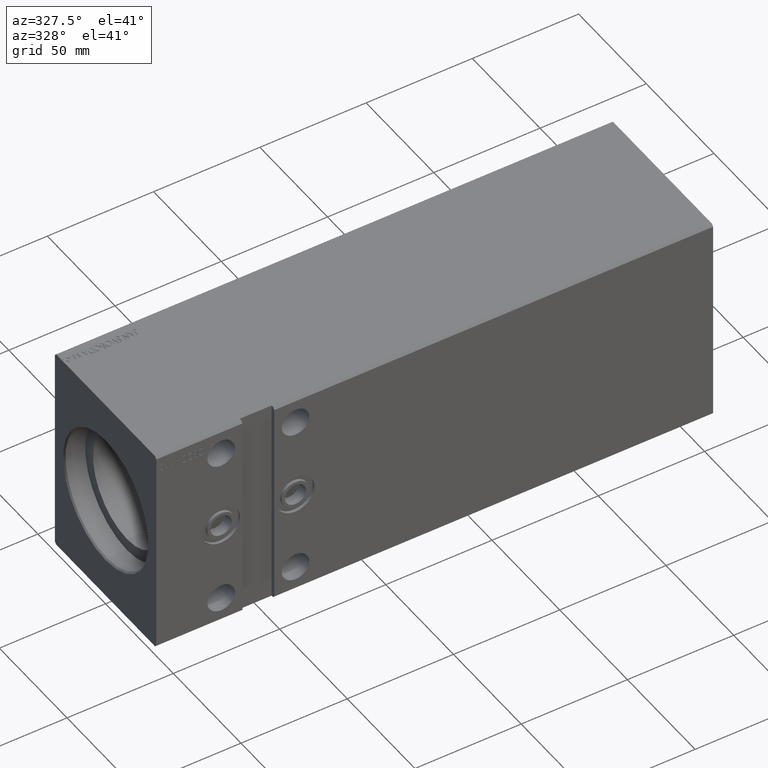
[diagram: clean part render]
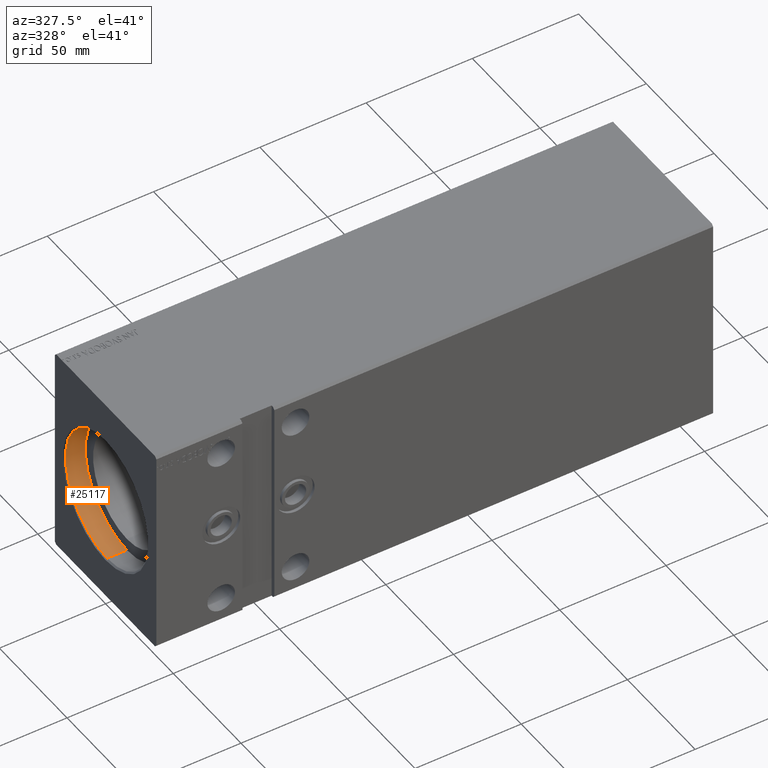
[diagram: same view with one face highlighted and labeled with its STEP entity id]
A machine part, auxiliary view. The second image highlights one B-rep face of the part: STEP entity #25117.
In plain terms, the highlighted cylindrical surface (partial cylindrical patch) has radius 30.75 mm, axis along (-1, -0, -0).
Its self-contained STEP definition (entity closure, byte-faithful):
#218 = VERTEX_POINT ( 'NONE', #27071 ) ;
#445 = DIRECTION ( 'NONE',  ( 0.000000000000000000, 0.000000000000000000, 1.000000000000000000 ) ) ;
#1341 = CARTESIAN_POINT ( 'NONE',  ( 0.6999999999999957367, 3.765788907378111328E-15, -30.75000000000000355 ) ) ;
#3138 = CYLINDRICAL_SURFACE ( 'NONE', #20716, 30.75000000000000355 ) ;
#3277 = VECTOR ( 'NONE', #14065, 1000.000000000000000 ) ;
#6073 = DIRECTION ( 'NONE',  ( 0.000000000000000000, 0.000000000000000000, 1.000000000000000000 ) ) ;
#6804 = CARTESIAN_POINT ( 'NONE',  ( 10.00000000000000000, 3.765788907378111328E-15, -30.75000000000000355 ) ) ;
#9210 = ORIENTED_EDGE ( 'NONE', *, *, #10009, .T. ) ;
#9942 = CARTESIAN_POINT ( 'NONE',  ( 0.6999999999999957367, 0.000000000000000000, 0.000000000000000000 ) ) ;
#10009 = EDGE_CURVE ( 'NONE', #31422, #16236, #40732, .T. ) ;
#10543 = CARTESIAN_POINT ( 'NONE',  ( 10.00000000000000000, 0.000000000000000000, 30.75000000000000355 ) ) ;
#11177 = VERTEX_POINT ( 'NONE', #28236 ) ;
#11388 = CIRCLE ( 'NONE', #34418, 30.75000000000000355 ) ;
#12630 = DIRECTION ( 'NONE',  ( -1.000000000000000000, -0.000000000000000000, -0.000000000000000000 ) ) ;
#14065 = DIRECTION ( 'NONE',  ( -1.000000000000000000, -0.000000000000000000, -0.000000000000000000 ) ) ;
#15816 = EDGE_CURVE ( 'NONE', #11177, #16236, #32135, .T. ) ;
#16236 = VERTEX_POINT ( 'NONE', #1341 ) ;
#16317 = CARTESIAN_POINT ( 'NONE',  ( 10.00000000000000000, 0.000000000000000000, 0.000000000000000000 ) ) ;
#20442 = LINE ( 'NONE', #10543, #3277 ) ;
#20691 = EDGE_CURVE ( 'NONE', #218, #11177, #11388, .T. ) ;
#20716 = AXIS2_PLACEMENT_3D ( 'NONE', #16317, #12630, #445 ) ;
#21387 = ORIENTED_EDGE ( 'NONE', *, *, #15816, .F. ) ;
#22295 = AXIS2_PLACEMENT_3D ( 'NONE', #9942, #32180, #35286 ) ;
#25117 = ADVANCED_FACE ( 'NONE', ( #28668 ), #3138, .F. ) ;
#25852 = CARTESIAN_POINT ( 'NONE',  ( 0.6999999999999957367, 0.000000000000000000, 30.75000000000000355 ) ) ;
#26384 = EDGE_LOOP ( 'NONE', ( #21387, #29650, #34047, #9210 ) ) ;
#27071 = CARTESIAN_POINT ( 'NONE',  ( 10.00000000000000000, 0.000000000000000000, 30.75000000000000355 ) ) ;
#28236 = CARTESIAN_POINT ( 'NONE',  ( 10.00000000000000000, 3.765788907378111328E-15, -30.75000000000000355 ) ) ;
#28668 = FACE_OUTER_BOUND ( 'NONE', #26384, .T. ) ;
#29650 = ORIENTED_EDGE ( 'NONE', *, *, #20691, .F. ) ;
#31422 = VERTEX_POINT ( 'NONE', #25852 ) ;
#31733 = DIRECTION ( 'NONE',  ( -1.000000000000000000, -0.000000000000000000, -0.000000000000000000 ) ) ;
#31985 = EDGE_CURVE ( 'NONE', #218, #31422, #20442, .T. ) ;
#32135 = LINE ( 'NONE', #6804, #33501 ) ;
#32180 = DIRECTION ( 'NONE',  ( -1.000000000000000000, 0.000000000000000000, 0.000000000000000000 ) ) ;
#33501 = VECTOR ( 'NONE', #31733, 1000.000000000000000 ) ;
#34047 = ORIENTED_EDGE ( 'NONE', *, *, #31985, .T. ) ;
#34418 = AXIS2_PLACEMENT_3D ( 'NONE', #34703, #37979, #6073 ) ;
#34703 = CARTESIAN_POINT ( 'NONE',  ( 10.00000000000000000, 0.000000000000000000, 0.000000000000000000 ) ) ;
#35286 = DIRECTION ( 'NONE',  ( 0.000000000000000000, 0.000000000000000000, -1.000000000000000000 ) ) ;
#37979 = DIRECTION ( 'NONE',  ( -1.000000000000000000, 0.000000000000000000, 0.000000000000000000 ) ) ;
#40732 = CIRCLE ( 'NONE', #22295, 30.75000000000000355 ) ;